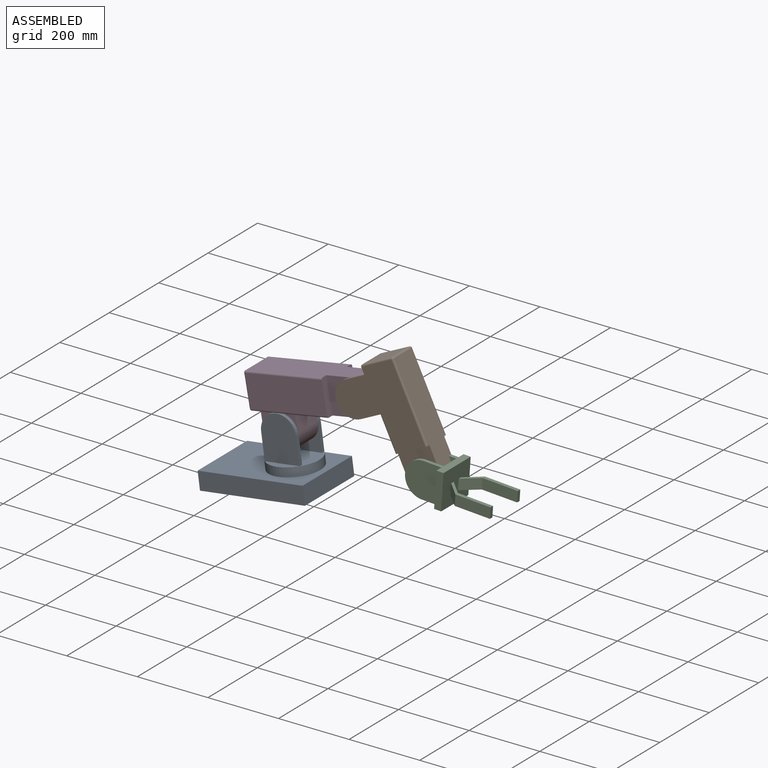
[diagram: assembled view]
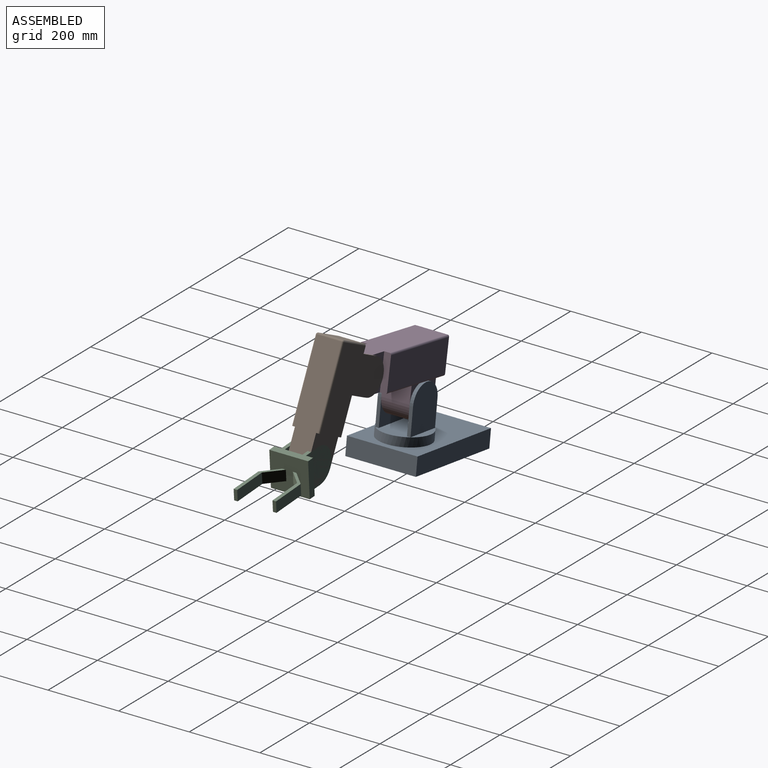
[diagram: assembled view, second angle]
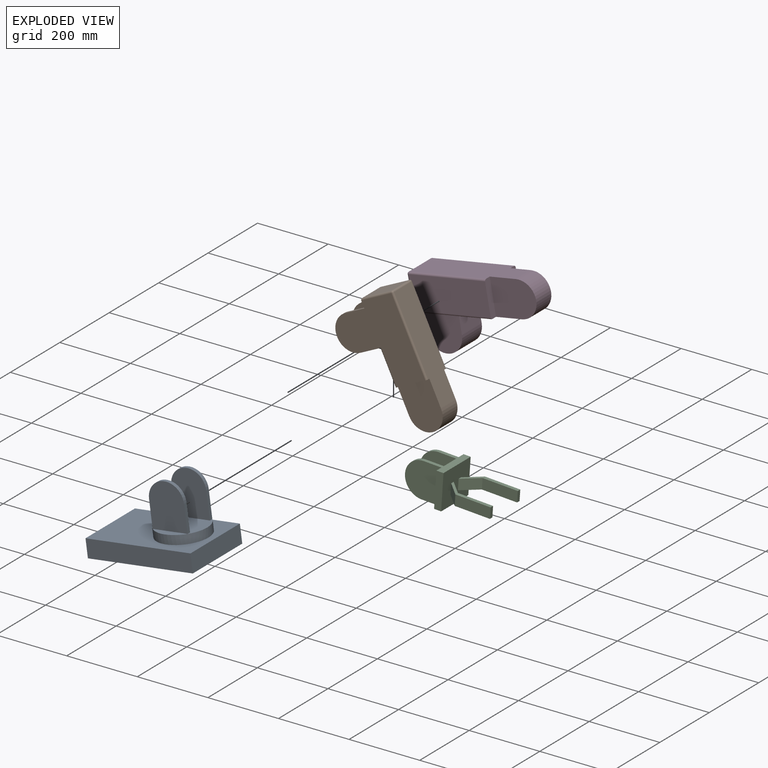
[diagram: exploded view]
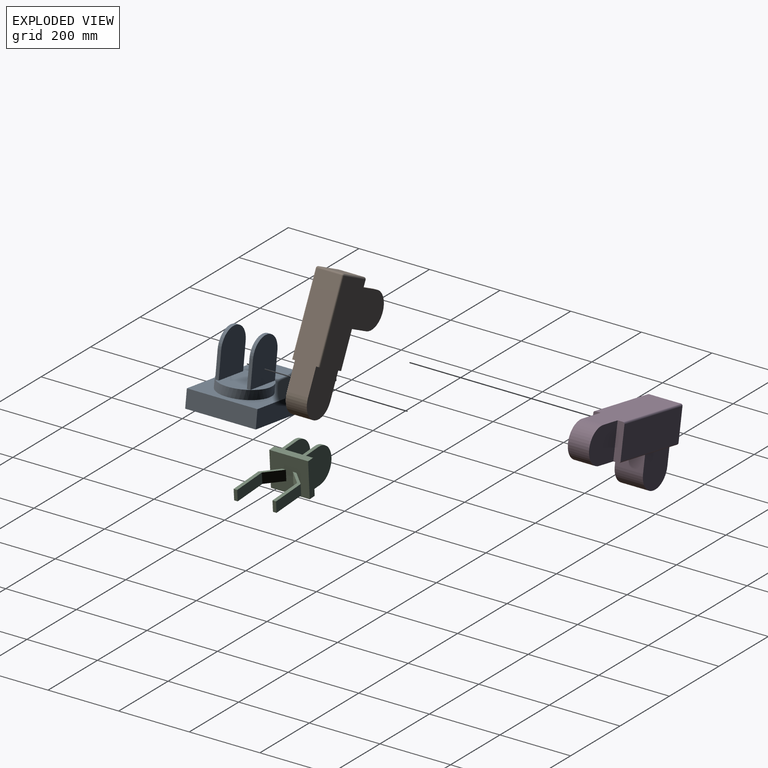
[diagram: exploded view, second angle]
ASSEMBLY  parts=4 mates=3
PART A: 20 faces, bbox 300x200x200 mm
  f0: plane 300x200mm, normal (0,0,1), area 44292mm2, adj f1,f2,f3,f4,f8
  f1: plane 300x50mm, normal (0,-1,0), area 15000mm2, adj f0,f2,f4,f5
  f2: plane 200x50mm, normal (1,0,0), area 10000mm2, adj f0,f1,f3,f5
  f3: plane 300x50mm, normal (0,1,0), area 15000mm2, adj f0,f2,f4,f5
  f4: plane 200x50mm, normal (-1,0,0), area 10000mm2, adj f0,f1,f3,f5
  f5: plane 300x200mm, normal (0,0,-1), area 60000mm2, adj f1,f2,f3,f4
  f6: plane 141.42x100mm, normal (0,0,1), area 10854mm2, adj f8,f11,f12,f14,f16,f17,f19
  f7: plane 100x20.71mm, normal (0,0,1), area 1427mm2, adj f8,f13
  f8: cylinder r=70.71mm len=141.42mm, axis (0,0,-1), area 11107.2mm2, adj f0,f6,f7,f9
  f9: plane 100x20.71mm, normal (0,0,1), area 1427mm2, adj f8,f18
  f10: cylinder r=50mm len=100mm, axis (0,-1,0), area 1570.8mm2, adj f11,f12,f13,f14
  f11: plane 75x10mm, normal (1,0,0), area 750mm2, adj f6,f10,f13,f14
  f12: plane 75x10mm, normal (-1,0,0), area 750mm2, adj f6,f10,f13,f14
  f13: plane 125x100mm, normal (0,-1,0), area 11427mm2, adj f7,f10,f11,f12
  f14: plane 125x100mm, normal (0,1,0), area 11427mm2, adj f6,f10,f11,f12
  f15: cylinder r=50mm len=100mm, axis (0,1,0), area 1570.8mm2, adj f16,f17,f18,f19
  f16: plane 75x10mm, normal (-1,0,0), area 750mm2, adj f6,f15,f18,f19
  f17: plane 75x10mm, normal (1,0,0), area 750mm2, adj f6,f15,f18,f19
  f18: plane 125x100mm, normal (0,1,0), area 11427mm2, adj f9,f15,f16,f17
  f19: plane 125x100mm, normal (0,-1,0), area 11427mm2, adj f6,f15,f16,f17
PART B: 28 faces, bbox 350x80x210 mm
  f0: cylinder r=50mm len=100mm, axis (0,1,0), area 1570.8mm2, adj f1,f2,f3,f4
  f1: plane 60x10mm, normal (-1,0,0), area 600mm2, adj f0,f3,f4,f13
  f2: plane 65x10mm, normal (1,0,0), area 605.4mm2, adj f0,f3,f4,f13,f18
  f3: plane 110x100mm, normal (0,-1,0), area 9927mm2, adj f0,f1,f2,f13
  f4: plane 220x205mm, normal (0,1,0), area 30322.5mm2, adj f0,f1,f2,f13,f16,f18,f21,f26
  f5: cylinder r=50mm len=100mm, axis (0,-1,0), area 1570.8mm2, adj f6,f7,f8,f9
  f6: plane 65x10mm, normal (1,0,0), area 605.4mm2, adj f5,f8,f9,f13,f19
  f7: plane 60x10mm, normal (-1,0,0), area 600mm2, adj f5,f8,f9,f13
  f8: plane 110x100mm, normal (0,1,0), area 9927mm2, adj f5,f6,f7,f13
  f9: plane 220x205mm, normal (0,-1,0), area 30327mm2, adj f5,f6,f7,f13,f14,f19,f20,f25
  f10: plane 295x70mm, normal (0,0,1), area 19900mm2, adj f11,f14,f15,f16,f17,f20,f21,f22
  f11: cylinder r=50mm len=100mm, axis (0,1,0), area 9424.8mm2, adj f10,f13,f15,f17
  f12: plane 90x70mm, normal (-1,0,0), area 6300mm2, adj f22,f25,f26,f27
  f13: plane 295x80mm, normal (0,0,-1), area 19095.5mm2, adj f1,f2,f3,f4,f6,f7,f8,f9
  f14: plane 100x10mm, normal (1,0,0), area 989.3mm2, adj f9,f10,f13,f15,f19,f20
  f15: plane 125x100mm, normal (0,-1,0), area 11427mm2, adj f10,f11,f13,f14
  f16: plane 100x10mm, normal (1,0,0), area 989.3mm2, adj f4,f10,f13,f17,f18,f21
  f17: plane 125x100mm, normal (0,1,0), area 11427mm2, adj f10,f11,f13,f16
  f18: cylinder r=5mm len=100.9mm, axis (-1,0,0), area 792.4mm2, adj f2,f4,f13,f16
  f19: cylinder r=5mm len=100mm, axis (-1,0,0), area 785.4mm2, adj f6,f9,f13,f14
  f20: cylinder r=5mm len=220mm, axis (1,0,0), area 1727.9mm2, adj f9,f10,f14,f23
  f21: cylinder r=5mm len=220mm, axis (1,0,0), area 1727.9mm2, adj f4,f10,f16,f24
  f22: cylinder r=5mm len=70mm, axis (0,1,0), area 549.8mm2, adj f10,f12,f23,f24
  f23: sphere r=5mm, area 39.3mm2, adj f20,f22,f25
  f24: sphere r=5mm, area 39.3mm2, adj f21,f22,f26
  f25: cylinder r=5mm len=95mm, axis (0,0,1), area 731.9mm2, adj f9,f12,f23,f27
  f26: cylinder r=5mm len=95mm, axis (0,0,1), area 731.9mm2, adj f4,f12,f24,f27
  f27: cylinder r=5mm len=80mm, axis (0,-1,0), area 599.8mm2, adj f12,f13,f25,f26
PART C: 28 faces, bbox 260x120x100 mm
  f0: plane 40x40mm, normal (0.71,-0.71,0), area 1697.1mm2, adj f2,f3,f4,f22
  f1: plane 40x40mm, normal (-0.71,0.71,0), area 1697.1mm2, adj f2,f3,f6,f22
  f2: plane 140x50mm, normal (0,0,1), area 1400mm2, adj f0,f1,f4,f5,f6,f22
  f3: plane 140x50mm, normal (0,0,-1), area 1400mm2, adj f0,f1,f4,f5,f6,f22
  f4: plane 100x30mm, normal (0,-1,0), area 3000mm2, adj f0,f2,f3,f5
  f5: plane 30x10mm, normal (1,0,0), area 300mm2, adj f2,f3,f4,f6
  f6: plane 100x30mm, normal (0,1,0), area 3000mm2, adj f1,f2,f3,f5
  f7: plane 40x40mm, normal (0.71,0.71,0), area 1697.1mm2, adj f9,f10,f13,f22
  f8: plane 40x40mm, normal (-0.71,-0.71,0), area 1697.1mm2, adj f9,f10,f11,f22
  f9: plane 140x50mm, normal (0,0,1), area 1400mm2, adj f7,f8,f11,f12,f13,f22
  f10: plane 140x50mm, normal (0,0,-1), area 1400mm2, adj f7,f8,f11,f12,f13,f22
  f11: plane 100x30mm, normal (0,-1,0), area 3000mm2, adj f8,f9,f10,f12
  f12: plane 30x10mm, normal (1,0,0), area 300mm2, adj f9,f10,f11,f13
  f13: plane 100x30mm, normal (0,1,0), area 3000mm2, adj f7,f9,f10,f12
  f14: plane 100x20mm, normal (-1,0,0), area 2000mm2, adj f15,f23,f24,f25
  f15: plane 100x100mm, normal (0,1,0), area 8927mm2, adj f14,f24,f25,f26
  f16: plane 100x100mm, normal (0,-1,0), area 8927mm2, adj f17,f24,f25,f26
  f17: plane 100x50mm, normal (-1,0,0), area 5000mm2, adj f16,f18,f24,f25
  f18: plane 100x100mm, normal (0,1,0), area 8927mm2, adj f17,f24,f25,f27
  f19: plane 100x100mm, normal (0,-1,0), area 8927mm2, adj f20,f24,f25,f27
  f20: plane 100x20mm, normal (-1,0,0), area 2000mm2, adj f19,f21,f24,f25
  f21: plane 100x20mm, normal (0,-1,0), area 2000mm2, adj f20,f22,f24,f25
  f22: plane 110x100mm, normal (1,0,0), area 10400mm2, adj f0,f1,f2,f3,f7,f8,f9,f10
  f23: plane 100x20mm, normal (0,1,0), area 2000mm2, adj f14,f22,f24,f25
  f24: plane 110x70mm, normal (0,0,1), area 3200mm2, adj f14,f15,f16,f17,f18,f19,f20,f21
  f25: plane 110x70mm, normal (0,0,-1), area 3200mm2, adj f14,f15,f16,f17,f18,f19,f20,f21
  f26: cylinder r=50mm len=100mm, axis (0,1,0), area 1570.8mm2, adj f15,f16,f24,f25
  f27: cylinder r=50mm len=100mm, axis (0,-1,0), area 1570.8mm2, adj f18,f19,f24,f25
PART D: 27 faces, bbox 350x100x200 mm
  f0: plane 295x90mm, normal (0,0,1), area 24553.9mm2, adj f5,f9,f10,f12,f13,f20,f23,f26
  f1: plane 80x50mm, normal (-1,0,0), area 4000mm2, adj f4,f7,f11,f14
  f2: plane 80x50mm, normal (1,0,0), area 4000mm2, adj f4,f7,f11,f14
  f3: plane 220x90mm, normal (0,-1,0), area 19800mm2, adj f9,f15,f20,f21
  f4: cylinder r=50mm len=100mm, axis (0,1,0), area 12566.4mm2, adj f1,f2,f11,f14
  f5: cylinder r=50mm len=100mm, axis (0,1,0), area 9424.8mm2, adj f0,f7,f10,f13
  f6: plane 90x90mm, normal (-1,0,0), area 8100mm2, adj f16,f21,f22,f26
  f7: plane 295x90mm, normal (0,0,-1), area 16553.9mm2, adj f1,f2,f5,f9,f10,f11,f12,f13
  f8: plane 236.93x90mm, normal (0,1,0), area 21323.4mm2, adj f12,f17,f22,f23
  f9: plane 100x20mm, normal (1,0,0), area 1989.3mm2, adj f0,f3,f7,f10,f15,f20
  f10: plane 125x100mm, normal (0,-1,0), area 11427mm2, adj f0,f5,f7,f9
  f11: plane 100x100mm, normal (0,-1,0), area 8927mm2, adj f1,f2,f4,f7
  f12: plane 100x20mm, normal (1,0,0), area 1989.3mm2, adj f0,f7,f8,f13,f17,f23
  f13: plane 108.07x100mm, normal (0,1,0), area 9734.3mm2, adj f0,f5,f7,f12
  f14: plane 100x100mm, normal (0,1,0), area 8927mm2, adj f1,f2,f4,f7
  f15: cylinder r=5mm len=220mm, axis (-1,0,0), area 1727.9mm2, adj f3,f7,f9,f18
  f16: cylinder r=5mm len=90mm, axis (0,-1,0), area 706.9mm2, adj f6,f7,f18,f19
  f17: cylinder r=5mm len=236.93mm, axis (1,0,0), area 1860.8mm2, adj f7,f8,f12,f19
  f18: sphere r=5mm, area 39.3mm2, adj f15,f16,f21
  f19: sphere r=5mm, area 39.3mm2, adj f16,f17,f22
  f20: cylinder r=5mm len=220mm, axis (1,0,0), area 1727.9mm2, adj f0,f3,f9,f24
  f21: cylinder r=5mm len=90mm, axis (0,0,1), area 706.9mm2, adj f3,f6,f18,f24
  f22: cylinder r=5mm len=90mm, axis (0,0,-1), area 706.9mm2, adj f6,f8,f19,f25
  f23: cylinder r=5mm len=236.93mm, axis (-1,0,0), area 1860.8mm2, adj f0,f8,f12,f25
  f24: sphere r=5mm, area 39.3mm2, adj f20,f21,f26
  f25: sphere r=5mm, area 39.3mm2, adj f22,f23,f26
  f26: cylinder r=5mm len=90mm, axis (0,1,0), area 706.9mm2, adj f0,f6,f24,f25
PLACE A rot(axis=(0,-1,0),7.8deg) t=(99.35,-4.7,301.01)mm
PLACE B rot(axis=(0,1,0),64.1deg) t=(363.24,35.3,689.92)mm
PLACE C rot(axis=(0,1,0),3.8deg) t=(595.86,-9.7,388.07)mm
PLACE D rot(axis=(0,-1,0),10.3deg) t=(55.74,45.3,493.59)mm
MATE revolute B.f5 <-> D.f5  axis (0,1,0) through (342.04,-34.7,596.24)mm
MATE revolute A.f10 <-> D.f4  axis (0,1,0) through (138.45,-44.7,457.76)mm
MATE revolute C.f26 <-> B.f11  axis (0,1,0) through (539.29,-34.7,441.92)mm
